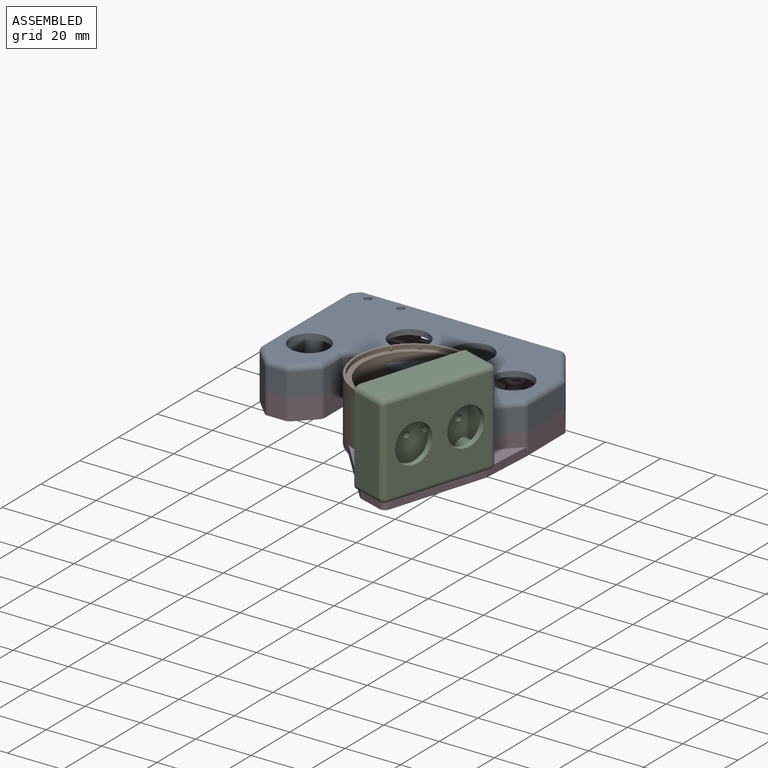
[diagram: assembled view]
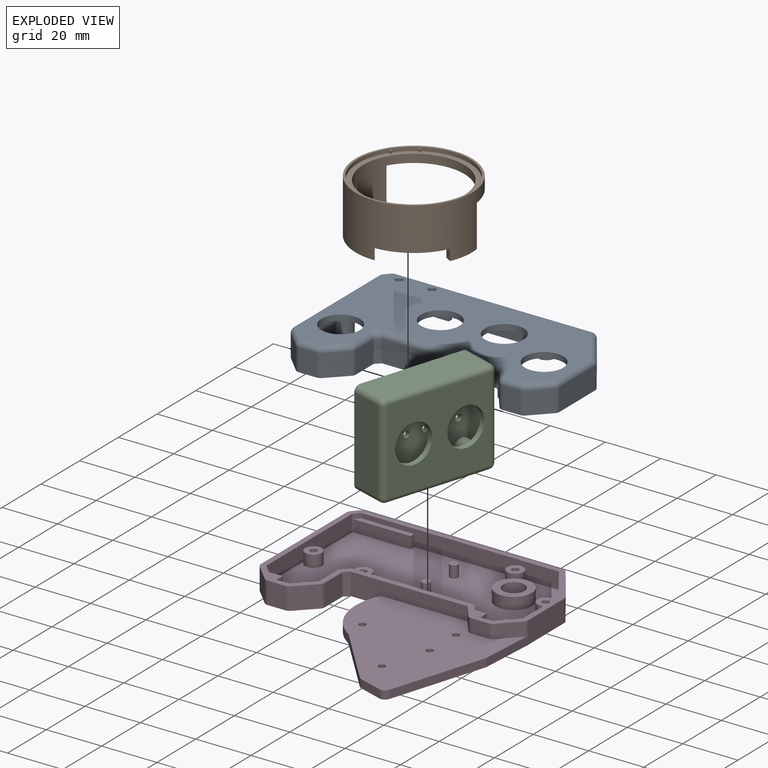
[diagram: exploded view]
GUIDED TOUR — FREECAD ASSEMBLY "mount"

This assembly has 4 components, labeled P0..P3 below (a component is one placed body or linked part; the same part can appear more than once), held together by 0 modeled joints plus 5 derived contact edges. A joint is a constraint between two components; its type names the relative motion it leaves free:
  CONTACT — a derived adjacency edge — the two components touch in the source model (clearance under 2% of the assembly's diagonal); it is measured from the geometry, not a modeled constraint.
Axis/direction vectors are unit vectors and 'through' points are millimeter coordinates, both in the assembly's world frame.

MATES
  1. CONTACT "contact_0_1": P0 <-> P1, contact direction (0.000, 0.000, -1.000) through (69.90, -39.89, 9.98) mm (derived from contact, not a modeled constraint)
  2. CONTACT "contact_0_3": P0 <-> P3, contact direction (0.000, 0.000, -1.000) through (69.01, -40.65, 0.00) mm (derived from contact, not a modeled constraint)
  3. CONTACT "contact_1_2": P1 <-> P2, contact direction (0.617, -0.760, 0.202) through (72.41, -51.57, 14.48) mm (derived from contact, not a modeled constraint)
  4. CONTACT "contact_1_3": P1 <-> P3, contact direction (-0.617, 0.760, -0.202) through (33.19, -36.09, -5.00) mm (derived from contact, not a modeled constraint)
  5. CONTACT "contact_2_3": P2 <-> P3, contact direction (0.000, 0.000, -1.000) through (84.27, -52.76, -4.99) mm (derived from contact, not a modeled constraint)

ASSEMBLY ORDER
  1. P2 — the base component [order verified]
  2. P0 [order verified]
  3. P1 [order verified]
  4. P3 [order verified]
Order-tag legend:
  [order verified] — this step's position reverses a verified removal order: the component was checked to insert without passing through the ones already placed.

Of the 4 components, 3 carry a construction recipe — the FreeCAD feature program (sketches with constraints, then the solid features that consume them) that regenerates the part from scratch, quoted from this document or from the linked companion document it references; the rest are supplied as boundary geometry only. The tour below walks the components in assembly order: each is shown spotlighted twice — in the assembled view, then in the exploded view, where a leader line traces a displaced component back to its assembled socket (components that stay in place when exploded have no leader line; saturated green if recipe-attached, orange if geometry-only; every other component desaturated gray) — followed by its recipe or geometry summary and the mates that hold it.
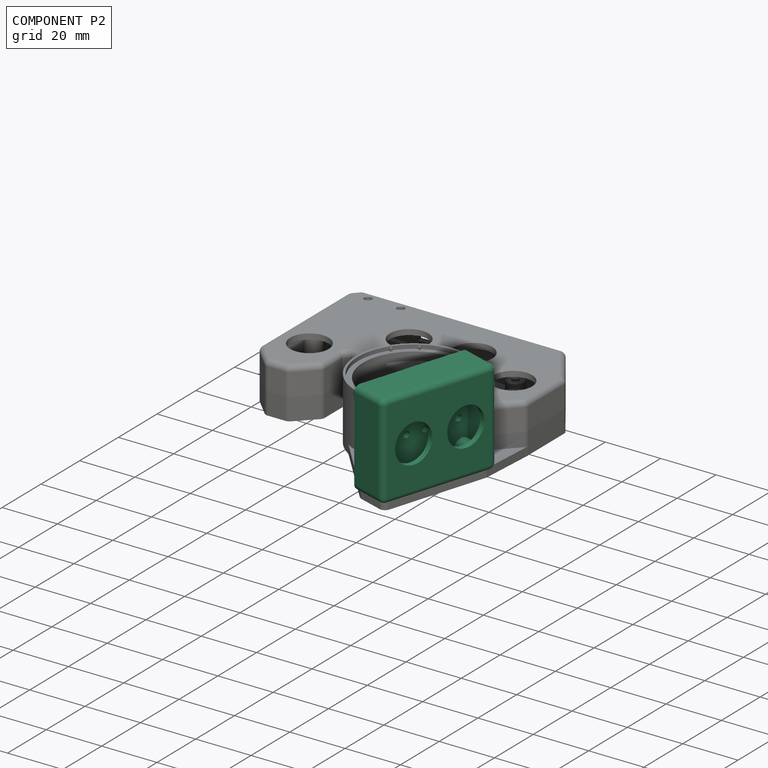
[diagram: component P2 — assembled]
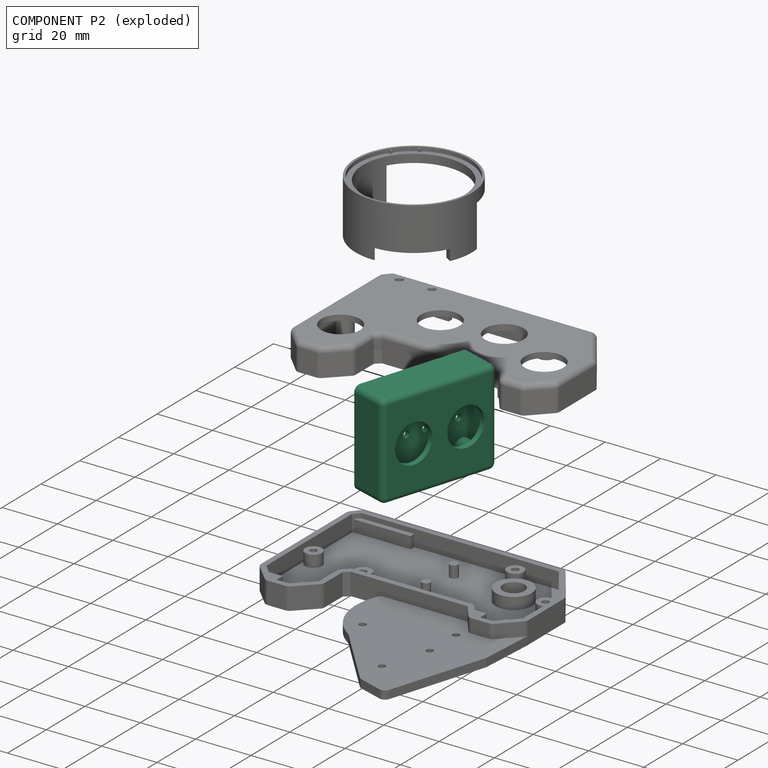
[diagram: component P2 — exploded]
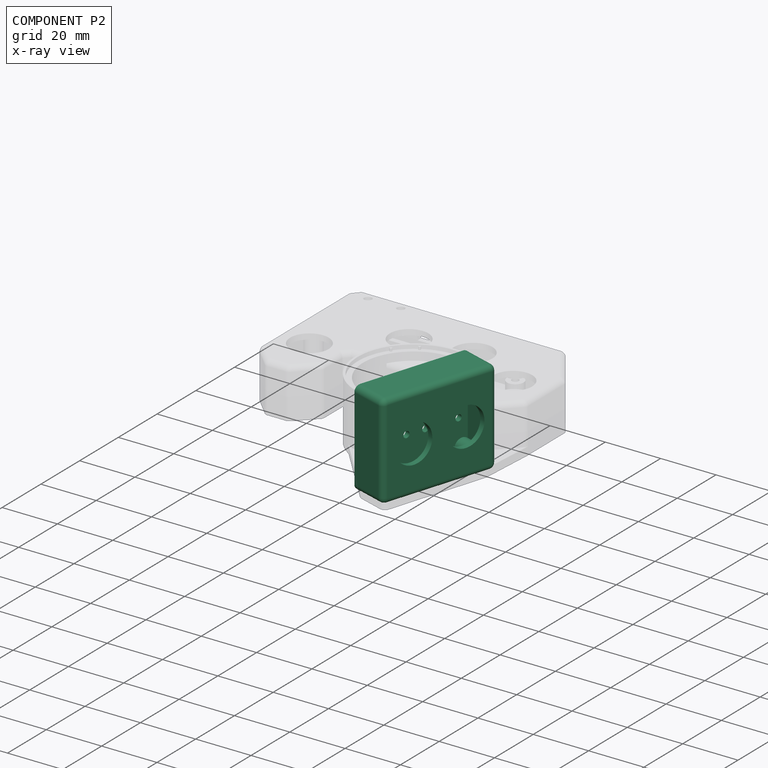
[diagram: component P2 — x-ray view]
COMPONENT P2 — same part as P1; its construction recipe is shown at P1.
Held by: resting contact with P1 (derived edge); resting contact with P3 (derived edge).
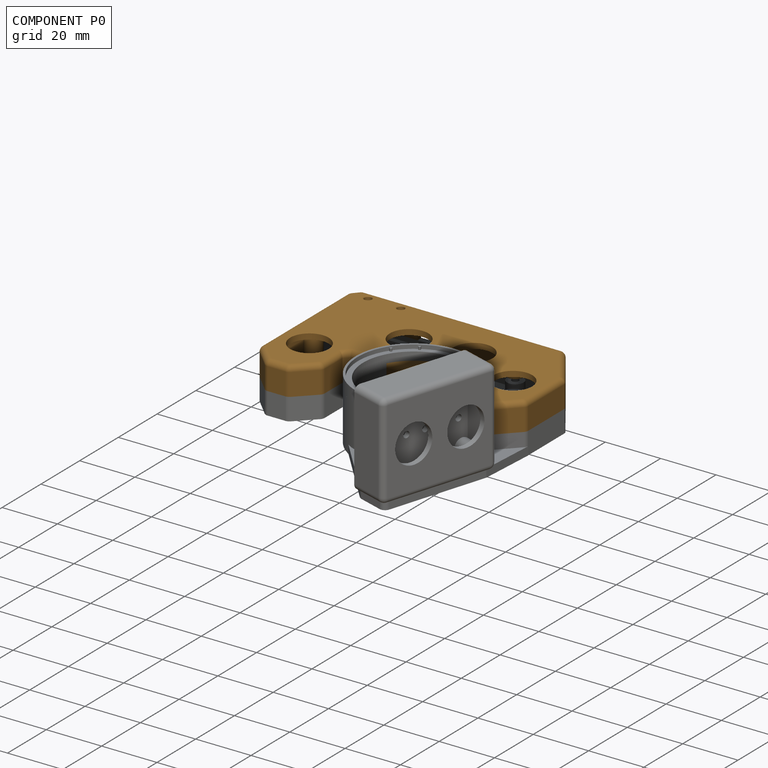
[diagram: component P0 — assembled]
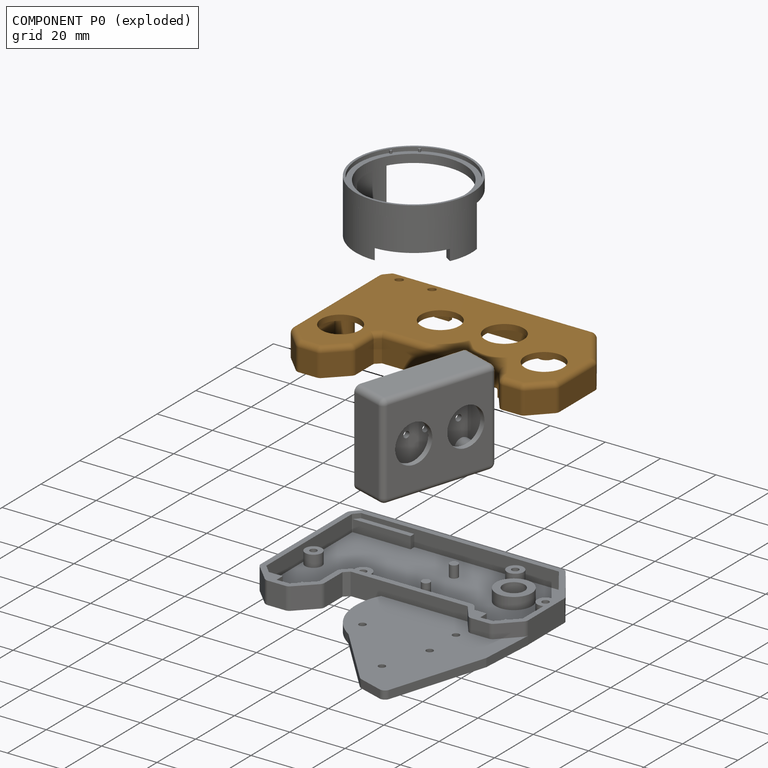
[diagram: component P0 — exploded]
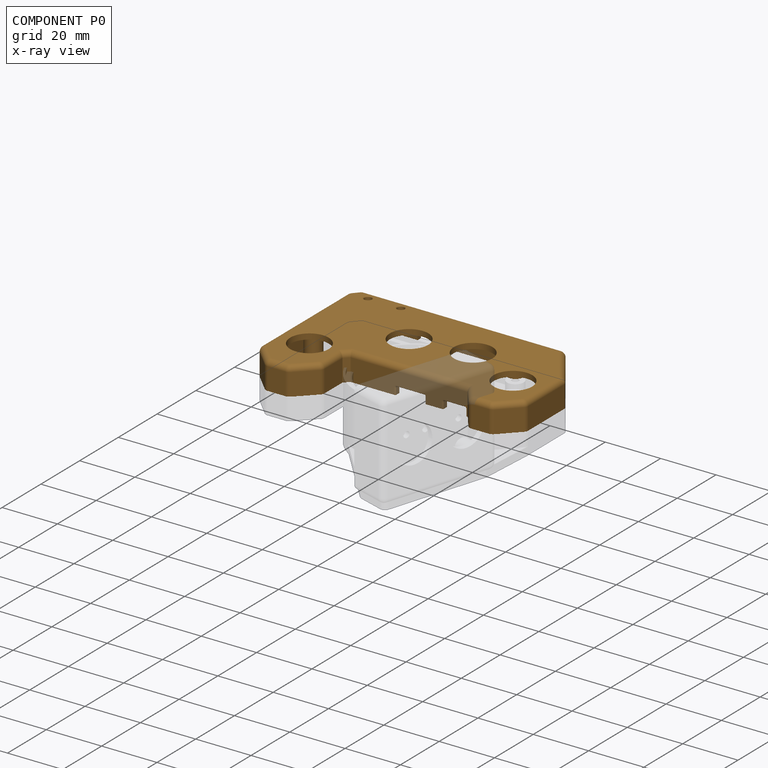
[diagram: component P0 — x-ray view]
COMPONENT P0 — geometry summary ("top-stick"; no construction recipe available for this part):
  bounding box: 87.5 x 56.7 x 10.0 mm
  tessellated surface: 38,838 triangles
  volume: 10368 mm^3 (21% of its bounding box)
Held by: resting contact with P1 (derived edge); resting contact with P3 (derived edge).
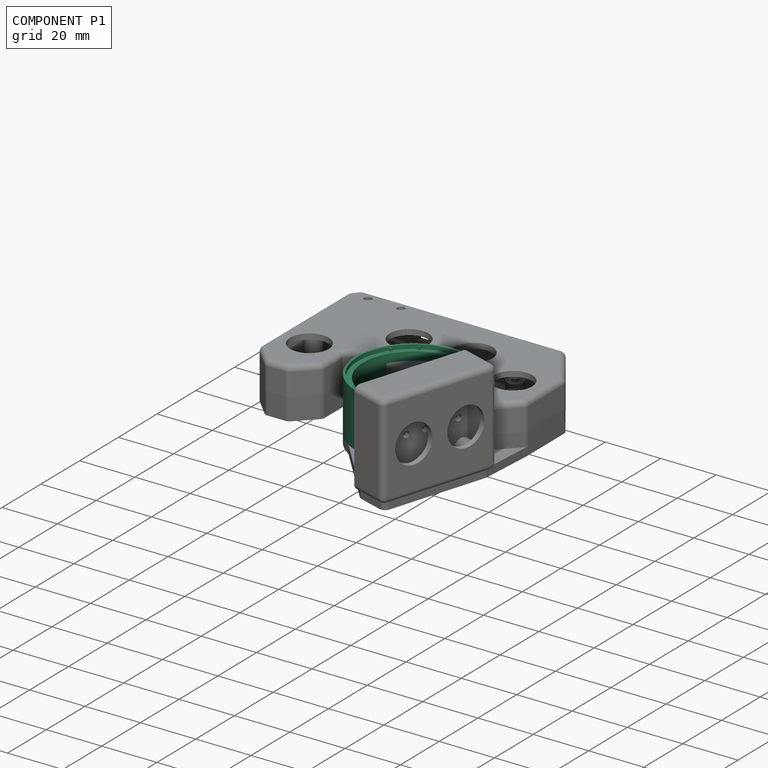
[diagram: component P1 — assembled]
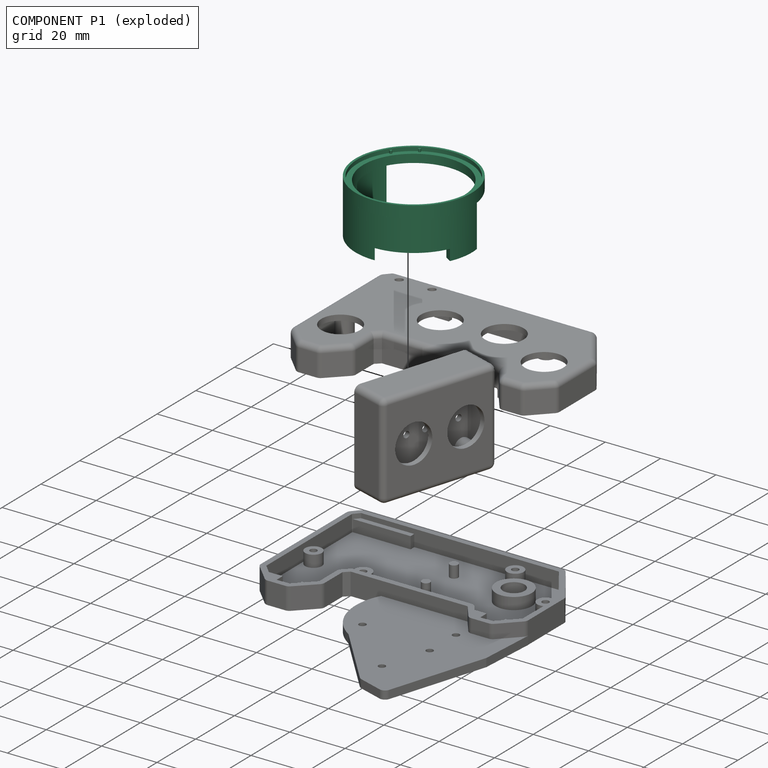
[diagram: component P1 — exploded]
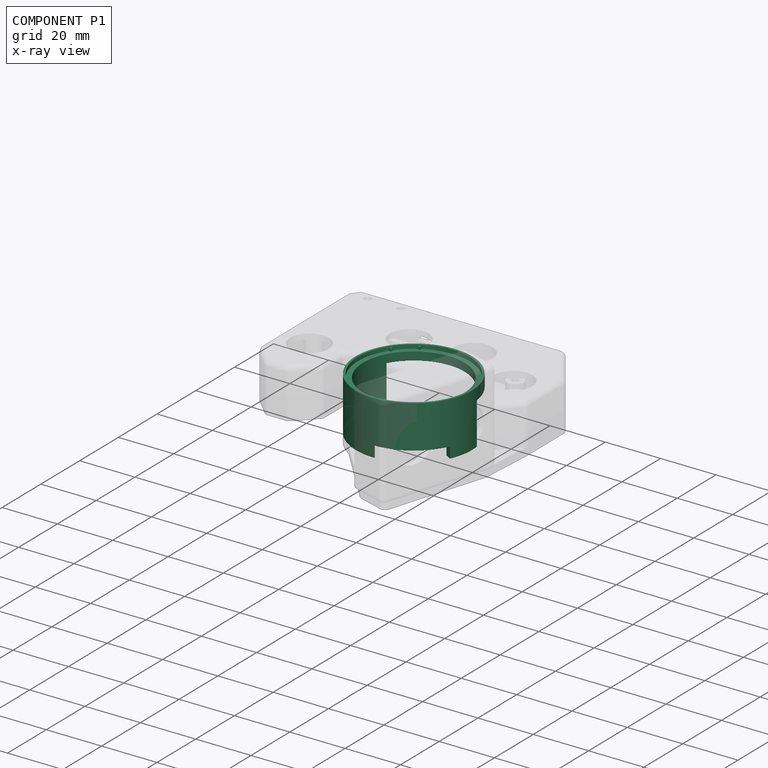
[diagram: component P1 — x-ray view]
COMPONENT P1 — recipe-attached ("cirque-mount", modeled in this document).
Held by: resting contact with P0 (derived edge); resting contact with P2 (derived edge); resting contact with P3 (derived edge).
Construction recipe (the document's own serialized feature program — sketch geometry with constraints, then the solid features built on it; lengths are millimeters unless a unit is written):

FEATURE [PartDesign::SubShapeBinder] Binder
  BindCopyOnChange = 0
  BindMode = 0
  ClaimChildren = false
  Context = -> Part [Body.Binder.]
  Fuse = false
  MakeFace = true
  OffsetFill = false
  OffsetIntersection = false
  OffsetJoinType = 0
  OffsetOpenResult = false
  PartialLoad = false
  Refine = true
  Relative = true
  Support = -> [Link003[Body.Fillet001.Edge124,Body.Fillet001.Edge8]]
  _Version = 2
FEATURE [PartDesign::SubShapeBinder] Binder001
  BindCopyOnChange = 0
  BindMode = 0
  ClaimChildren = false
  Context = -> Part [Body.Binder001.]
  Fuse = false
  MakeFace = true
  OffsetFill = false
  OffsetIntersection = false
  OffsetJoinType = 0
  OffsetOpenResult = false
  PartialLoad = false
  Refine = true
  Relative = true
  Support = -> [Link002[Body.Pocket.Edge31,Body.Pocket.Edge40]]
  _Version = 2
FEATURE [Sketcher::SketchObject] Sketch
  ArcFitTolerance = 1e-06
  ExternalGeometry = -> [Binder,Binder001]
  FullyConstrained = false
  MakeInternals = false
  MapMode = 5
  Placement = pos=(0,0,-8) rot=(1,0,0;3.14159rad)
  sketch-geometry (20):
    g0: Circle CenterX=40.5678 CenterY=54.7025 CenterZ=0 NormalX=0 NormalY=0 NormalZ=1 AngleXU=0 Radius=1.25
    g1: Circle CenterX=67.5 CenterY=44.9 CenterZ=0 NormalX=0 NormalY=0 NormalZ=1 AngleXU=0 Radius=1.25
    g2: Circle CenterX=62.0277 CenterY=75.3223 CenterZ=0 NormalX=0 NormalY=0 NormalZ=1 AngleXU=0 Radius=1.25
    g3: Circle CenterX=67.3937 CenterY=58.3035 CenterZ=0 NormalX=0 NormalY=0 NormalZ=1 AngleXU=0 Radius=1.25
    g4: LineSegment StartX=84.0256 StartY=53.1727 StartZ=0 EndX=73.36 EndY=87.7608 EndZ=0
    g5: LineSegment StartX=84.1106 StartY=52.7062 StartZ=0 EndX=85.3111 EndY=33.2052 EndZ=0
    g6: LineSegment StartX=78.0754 StartY=40.6787 StartZ=0 EndX=85.3111 EndY=33.2052 EndZ=0
    g7: LineSegment StartX=78.0754 StartY=40.6787 StartZ=0 EndX=69.8337 EndY=40.868 EndZ=0
    g8: LineSegment StartX=69.8337 StartY=40.868 StartZ=0 EndX=65.3422 EndY=34.6193 EndZ=0
    g9: ArcOfCircle CenterX=82.1144 CenterY=52.5834 CenterZ=0 NormalX=0 NormalY=0 NormalZ=1 AngleXU=0 Radius=2 StartAngle=0.0614837 EndAngle=0.299109
    g10: GeomPoint [constr] X=84.096 Y=52.9445 Z=0
    g11: ArcOfCircle CenterX=71.4488 CenterY=87.1714 CenterZ=0 NormalX=0 NormalY=0 NormalZ=1 AngleXU=0 Radius=2 StartAngle=0.299109 EndAngle=1.79232
    g12: GeomPoint [constr] X=72.9985 Y=88.9334 Z=0
    g13: ArcOfCircle CenterX=52.25 CenterY=44.9 CenterZ=0 NormalX=0 NormalY=0 NormalZ=1 AngleXU=0 Radius=21 StartAngle=2.13076 EndAngle=3.57455
    g14: LineSegment StartX=33.1877 StartY=36.0894 StartZ=0 EndX=33.9932 EndY=34.6193 EndZ=0
    g15: LineSegment StartX=33.9932 StartY=34.6193 StartZ=0 EndX=65.3422 EndY=34.6193 EndZ=0
    g16: LineSegment StartX=41.0958 StartY=62.6928 StartZ=0 EndX=61.2471 EndY=85.5949 EndZ=0
    g17: LineSegment StartX=71.0094 StartY=89.1226 StartZ=0 EndX=62.4472 EndY=86.3805 EndZ=0
    g18: ArcOfCircle CenterX=63.2684 CenterY=83.8164 CenterZ=0 NormalX=0 NormalY=0 NormalZ=1 AngleXU=0 Radius=2.69239 StartAngle=1.88073 EndAngle=2.42
    g19: GeomPoint [constr] X=61.7386 Y=86.1535 Z=0
  constraints (31):
    c: Diameter(g2) = 2.5
    c: Equal(g0,g1)
    c: Equal(g1,g3)
    c: Equal(g3,g2)
    c: Coincident(g6,g7)
    c: PointOnObject(g10,g4)
    c: PointOnObject(g10,g5)
    c: Tangent(g4,g9) = -1.5708
    c: Tangent(g5,g9) = 1.5708
    c: PointOnObject(g12,g4)
    c: Tangent(g4,g11) = -1.5708
    c: Tangent(g13,g-4) = -1.5708
    c: Coincident(g7,g8)
    c: Coincident(g13,g-4)
    c: Coincident(g14,g13)
    c: Coincident(g15,g14)
    c: Coincident(g15,g8)
    c: Horizontal(g15)
    c: Radius(g11) = 2
    c: Radius(g9) = 2
    c: Coincident(g5,g6)
    c: Coincident(g16,g13)
    c: Coincident(g17,g11)
    c: Coincident(g2,g-5)
    c: Coincident(g3,g-6)
    c: Coincident(g-7,g0)
    c: Coincident(g-8,g1)
    c: PointOnObject(g19,g16)
    c: PointOnObject(g19,g17)
    c: Tangent(g16,g18) = 1.5708
    c: Tangent(g17,g18) = -1.5708
FEATURE [PartDesign::Pad] Pad
  Direction = (0,-1e-16,-1)
  Length = 3
  Length2 = 10
  Placement = pos=(0,0,-8) rot=(1,0,0;3.14159rad)
  Profile = -> Sketch
  ReferenceAxis = -> Sketch [N_Axis]
  Refine = true
  Reversed = true
  Suppressed = false
  Type = 0
FEATURE [PartDesign::Chamfer] Chamfer
  Angle = 26.5
  Base = -> Pad [Edge41,Edge44,Edge47,Edge50]
  BaseFeature = -> Pad
  ChamferType = 2
  FlipDirection = false
  Placement = pos=(0,0,-8) rot=(1,0,0;3.14159rad)
  Refine = true
  Size = 1.5
  Size2 = 1.5
  SupportTransform = false
  Suppressed = false
  UseAllEdges = false
FEATURE [PartDesign::Body] Body
  AllowCompound = false
  Group = -> [Sketch,Pad,Chamfer,Binder,Binder001]
  Origin = -> Origin001
  Tip = -> Chamfer
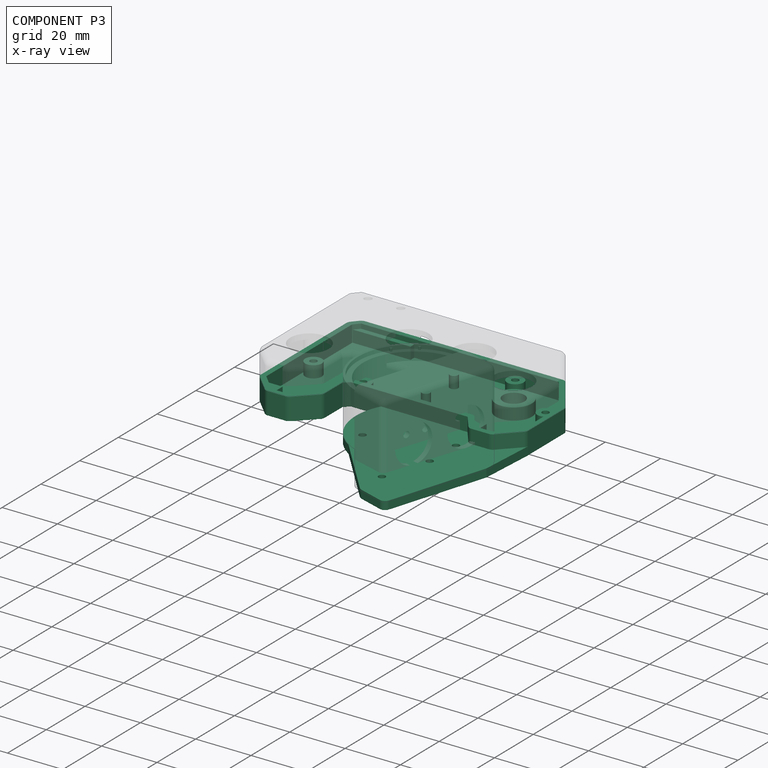
[diagram: component P3 — x-ray view]
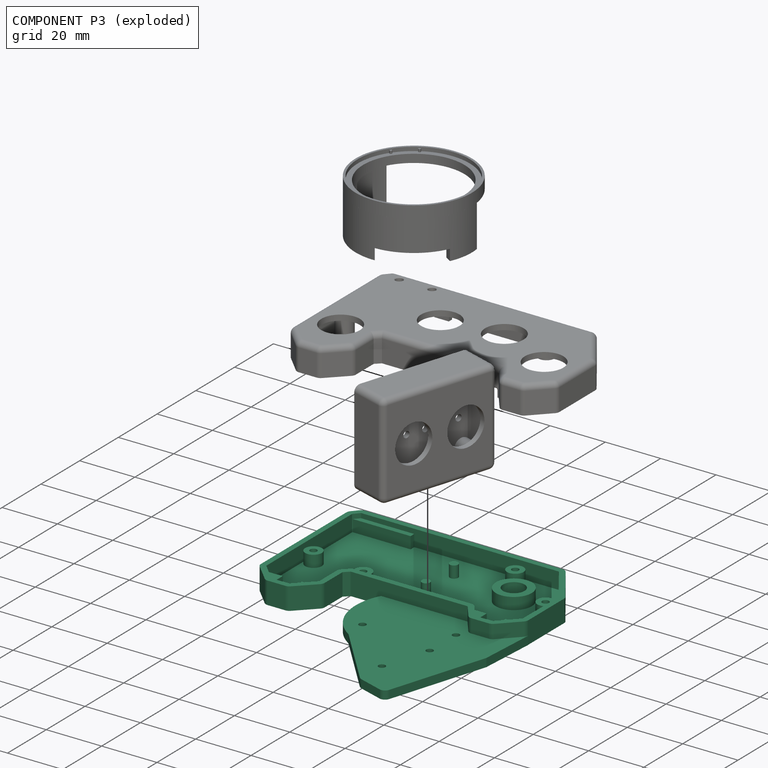
[diagram: component P3 — exploded]
COMPONENT P3 — same part as P1; its construction recipe is shown at P1.
Held by: resting contact with P0 (derived edge); resting contact with P1 (derived edge); resting contact with P2 (derived edge).
PROVENANCE & LICENSES
Assembly and component geometry: a FreeCAD (.FCStd) document from a public repository crawl; components, placements and joints were extracted with FreeCAD and each solid tessellated.
Construction recipes: the document's own serialized feature recipes (and, for linked parts, the recipes of companion documents from the same project).
License: other.
Joints: native FreeCAD joints and A2plus constraints are mapped to standard mate types; edges marked 'derived from contact' connect touching components and are measured from the geometry, not modeled.
Verification: 3 of this assembly's 4 components carry a construction recipe (3 from this document itself); the rest are geometry-only. Every component's tessellation passed the extraction mesh gates (mesh-volume checksum against the B-rep where available, bounding-box inflation <= 2%).
Renders: orthographic iso camera (az 35 / el 25); the floor grid conveys scale (grid pitch printed in each image; no ruler). In the exploded view each component is displaced by its stored offset vector: the offsets alone carry the explosion direction (mate normal/axis signs are not orientation cues and do not encode it), and separation distances are assigned per mate-chain, not proportionally to assembly-order depth.
